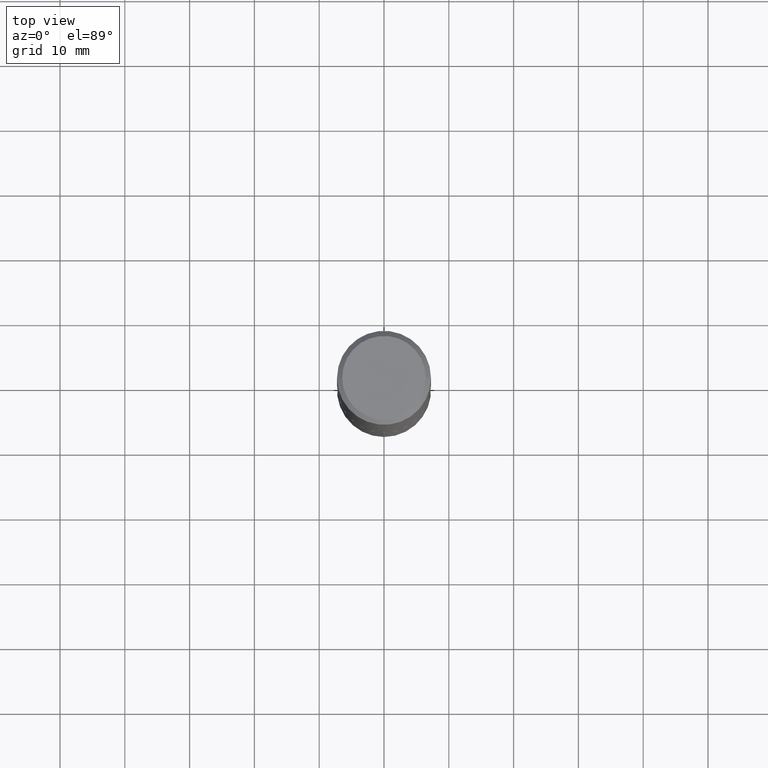
[diagram: clean part render]
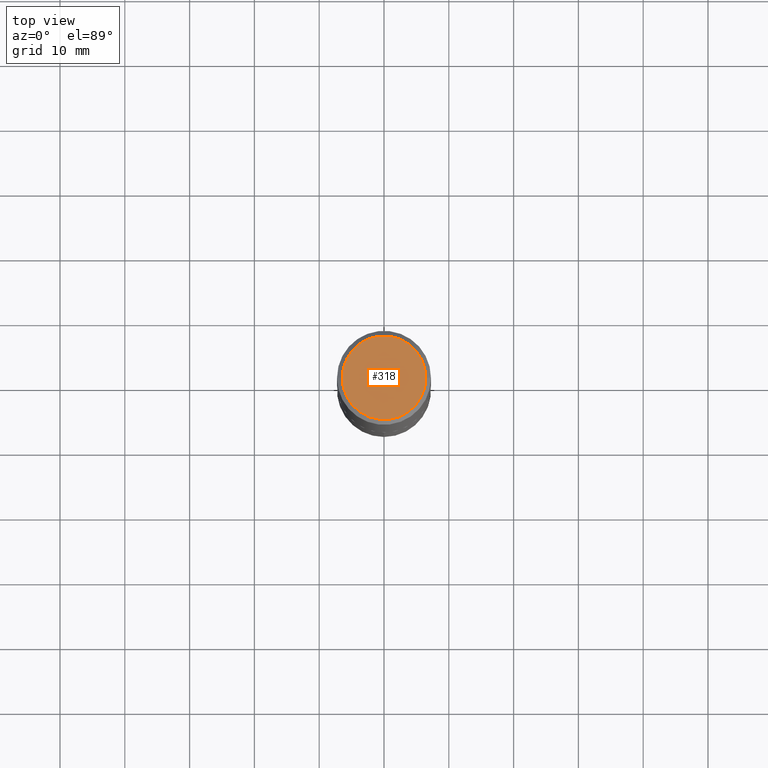
[diagram: same view with one face highlighted and labeled with its STEP entity id]
A machine part, top view. The second image highlights one B-rep face of the part: STEP entity #318.
In plain terms, the highlighted planar face has unit normal (0, -0, -1).
Its self-contained STEP definition (entity closure, byte-faithful):
#28 = DIRECTION ( 'NONE',  ( -1.000000000000000000, 6.982962677686265922E-15, -4.876176775795935793E-29 ) ) ;
#30 = VERTEX_POINT ( 'NONE', #212 ) ;
#73 = AXIS2_PLACEMENT_3D ( 'NONE', #266, #174, #28 ) ;
#91 = ORIENTED_EDGE ( 'NONE', *, *, #205, .T. ) ;
#94 = CIRCLE ( 'NONE', #143, 0.2541999999999999815 ) ;
#97 = VERTEX_POINT ( 'NONE', #343 ) ;
#100 = DIRECTION ( 'NONE',  ( 1.000000000000000000, -6.982962677686266711E-15, 4.876211886893936302E-29 ) ) ;
#115 = ORIENTED_EDGE ( 'NONE', *, *, #345, .T. ) ;
#134 = CARTESIAN_POINT ( 'NONE',  ( -4.132873053354873817E-47, 5.900647395337827841E-33, 1.690012582823348576E-18 ) ) ;
#143 = AXIS2_PLACEMENT_3D ( 'NONE', #134, #321, #175 ) ;
#174 = DIRECTION ( 'NONE',  ( 2.438088387897960049E-29, -3.491481338843145188E-15, -1.000000000000000000 ) ) ;
#175 = DIRECTION ( 'NONE',  ( 1.000000000000000000, -6.982962677686266711E-15, 4.876211886893936302E-29 ) ) ;
#177 = FACE_OUTER_BOUND ( 'NONE', #315, .T. ) ;
#196 = DIRECTION ( 'NONE',  ( -2.445468806185136597E-29, 3.491481338843145583E-15, 1.000000000000000000 ) ) ;
#205 = EDGE_CURVE ( 'NONE', #30, #97, #342, .T. ) ;
#209 = PLANE ( 'NONE',  #73 ) ;
#210 = AXIS2_PLACEMENT_3D ( 'NONE', #375, #196, #100 ) ;
#212 = CARTESIAN_POINT ( 'NONE',  ( -0.2541999999999999815, 1.829623508587272093E-15, 1.690012582810744134E-18 ) ) ;
#266 = CARTESIAN_POINT ( 'NONE',  ( -2.066436526677436908E-47, 2.950323697668913920E-33, 8.450062914116742878E-19 ) ) ;
#315 = EDGE_LOOP ( 'NONE', ( #91, #115 ) ) ;
#318 = ADVANCED_FACE ( 'NONE', ( #177 ), #209, .F. ) ;
#321 = DIRECTION ( 'NONE',  ( -2.445468806185136597E-29, 3.491481338843145583E-15, 1.000000000000000000 ) ) ;
#342 = CIRCLE ( 'NONE', #210, 0.2541999999999999815 ) ;
#343 = CARTESIAN_POINT ( 'NONE',  ( 0.2541999999999999815, -1.905688268168128037E-15, 1.690012582836218602E-18 ) ) ;
#345 = EDGE_CURVE ( 'NONE', #97, #30, #94, .T. ) ;
#375 = CARTESIAN_POINT ( 'NONE',  ( -4.132873053354873817E-47, 5.900647395337827841E-33, 1.690012582823348576E-18 ) ) ;